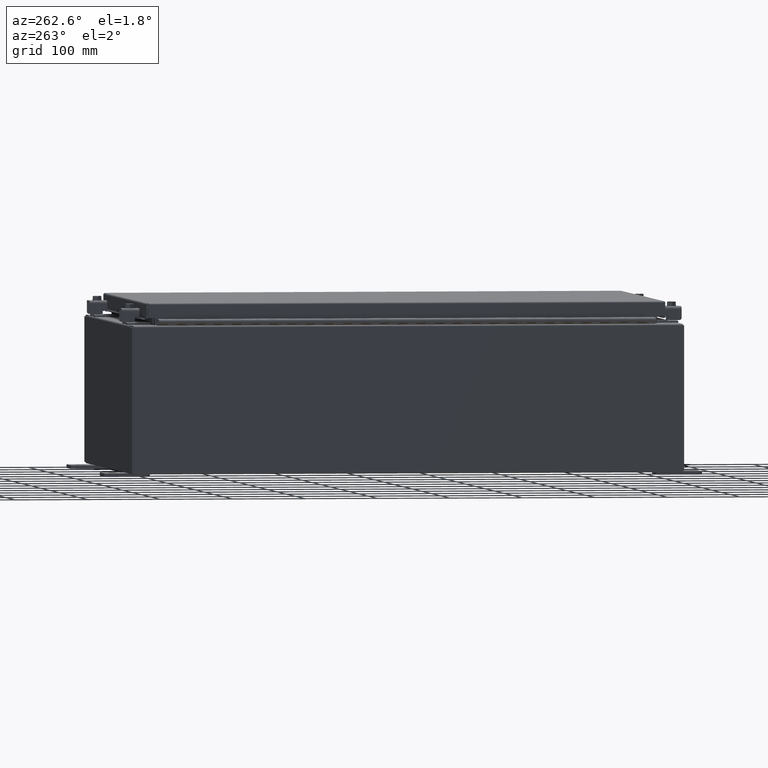
[diagram: clean part render]
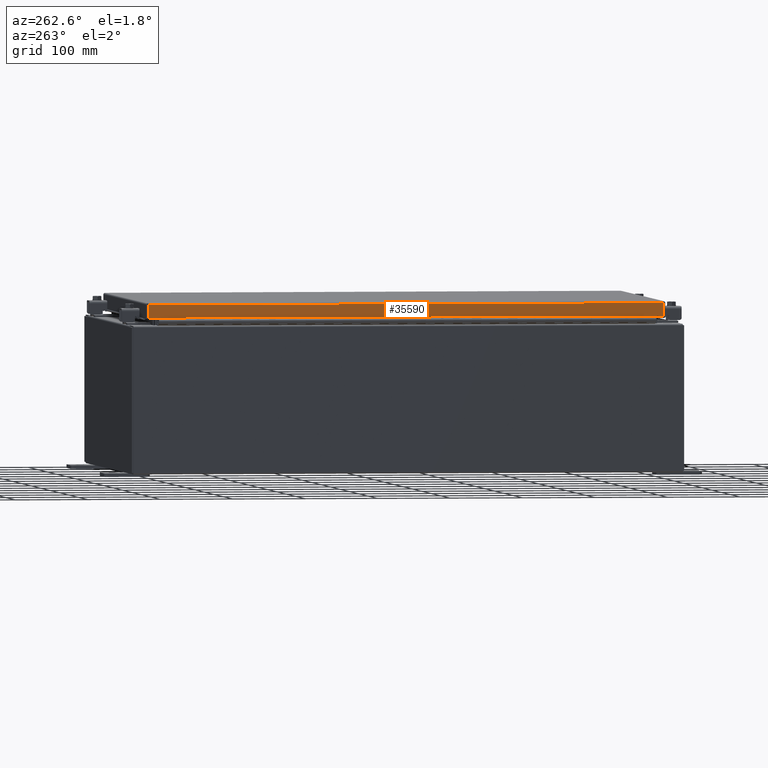
[diagram: same view with one face highlighted and labeled with its STEP entity id]
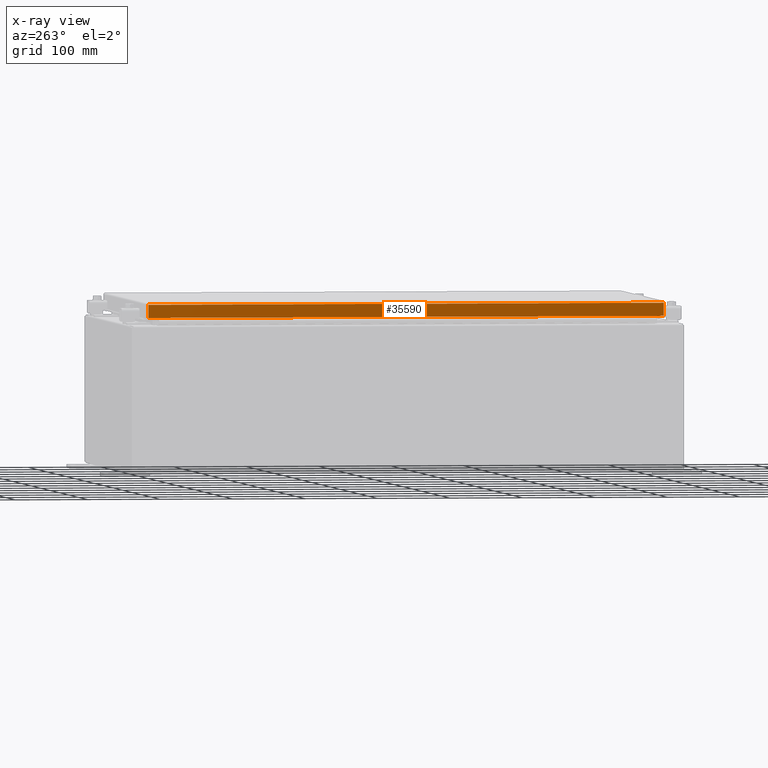
[diagram: x-ray of the same camera — body ghosted, the highlighted face saturated]
A machine part, auxiliary view. The second image highlights one B-rep face of the part: STEP entity #35590.
The next image is the same camera in x-ray: the body ghosted, the highlighted face saturated — about 0% of this face is hidden behind the body in this view.
In plain terms, the highlighted planar face has unit normal (1, 0, -0).
Its self-contained STEP definition (entity closure, byte-faithful):
#305 = DIRECTION ( 'NONE',  ( -3.034122441942816500E-015, 6.982962677686265900E-015, -1.000000000000000000 ) ) ;
#2352 = VECTOR ( 'NONE', #11380, 39.37007874015748100 ) ;
#3922 = DIRECTION ( 'NONE',  ( -3.034122441942816500E-015, 0.0000000000000000000, -1.000000000000000000 ) ) ;
#5654 = LINE ( 'NONE', #32056, #6562 ) ;
#6271 = EDGE_CURVE ( 'NONE', #31960, #25378, #5654, .T. ) ;
#6562 = VECTOR ( 'NONE', #31886, 39.37007874015748100 ) ;
#8832 = CARTESIAN_POINT ( 'NONE',  ( -9.077999999999997600, 14.00515786437626900, 1.256020718460122500E-013 ) ) ;
#9171 = EDGE_CURVE ( 'NONE', #31960, #19395, #30350, .T. ) ;
#10083 = VECTOR ( 'NONE', #36838, 39.37007874015748100 ) ;
#10711 = CARTESIAN_POINT ( 'NONE',  ( -9.077999999999997600, -14.00515786437626500, -0.07469999999999976700 ) ) ;
#11380 = DIRECTION ( 'NONE',  ( -4.379057701015054300E-047, 1.000000000000000000, 1.211441035930299800E-016 ) ) ;
#11954 = VERTEX_POINT ( 'NONE', #32267 ) ;
#12708 = LINE ( 'NONE', #25843, #2352 ) ;
#12871 = ORIENTED_EDGE ( 'NONE', *, *, #6271, .F. ) ;
#14125 = FACE_OUTER_BOUND ( 'NONE', #33565, .T. ) ;
#14676 = CARTESIAN_POINT ( 'NONE',  ( -9.077999999999999400, 14.00515786437627400, -0.7949999999999962700 ) ) ;
#16252 = AXIS2_PLACEMENT_3D ( 'NONE', #18305, #21254, #3922 ) ;
#16735 = VECTOR ( 'NONE', #305, 39.37007874015748100 ) ;
#18181 = PLANE ( 'NONE',  #16252 ) ;
#18305 = CARTESIAN_POINT ( 'NONE',  ( -9.077999999999997600, -3.336764542172729700E-030, 2.780457718396846400E-014 ) ) ;
#19395 = VERTEX_POINT ( 'NONE', #14676 ) ;
#19805 = EDGE_CURVE ( 'NONE', #25378, #11954, #33191, .T. ) ;
#21254 = DIRECTION ( 'NONE',  ( 1.000000000000000000, 3.675660434206576600E-031, -3.034122441942816500E-015 ) ) ;
#21864 = ORIENTED_EDGE ( 'NONE', *, *, #9171, .T. ) ;
#25378 = VERTEX_POINT ( 'NONE', #36627 ) ;
#25843 = CARTESIAN_POINT ( 'NONE',  ( -9.077999999999999400, -14.09399999999999600, -0.7949999999999997100 ) ) ;
#29145 = CARTESIAN_POINT ( 'NONE',  ( -9.077999999999997600, 14.00515786437626900, -0.08770000000000004200 ) ) ;
#30108 = EDGE_CURVE ( 'NONE', #11954, #19395, #12708, .T. ) ;
#30350 = LINE ( 'NONE', #8832, #16735 ) ;
#31222 = ORIENTED_EDGE ( 'NONE', *, *, #19805, .F. ) ;
#31886 = DIRECTION ( 'NONE',  ( 3.675660434206577100E-031, -1.000000000000000000, -1.083515668565077200E-045 ) ) ;
#31960 = VERTEX_POINT ( 'NONE', #29145 ) ;
#32056 = CARTESIAN_POINT ( 'NONE',  ( -9.077999999999997600, -14.09399999999999600, -0.08770000000000004200 ) ) ;
#32267 = CARTESIAN_POINT ( 'NONE',  ( -9.077999999999999400, -14.00515786437626200, -0.7949999999999996000 ) ) ;
#33191 = LINE ( 'NONE', #10711, #10083 ) ;
#33565 = EDGE_LOOP ( 'NONE', ( #12871, #21864, #35079, #31222 ) ) ;
#35079 = ORIENTED_EDGE ( 'NONE', *, *, #30108, .F. ) ;
#35590 = ADVANCED_FACE ( 'NONE', ( #14125 ), #18181, .F. ) ;
#36627 = CARTESIAN_POINT ( 'NONE',  ( -9.077999999999997600, -14.00515786437626400, -0.08770000000000007000 ) ) ;
#36838 = DIRECTION ( 'NONE',  ( -3.034122441942816500E-015, 6.982962677686265900E-015, -1.000000000000000000 ) ) ;